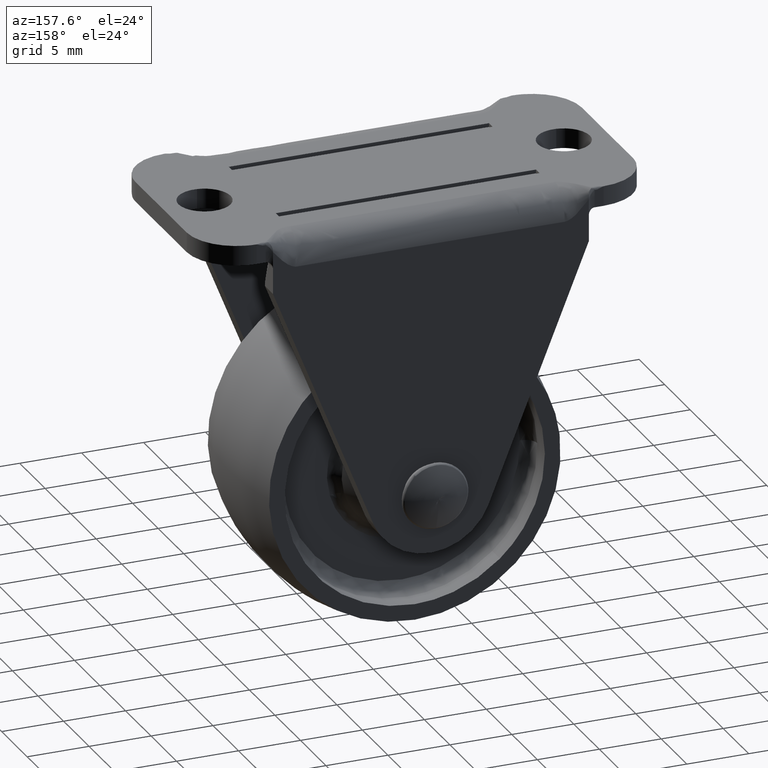
[diagram: clean part render]
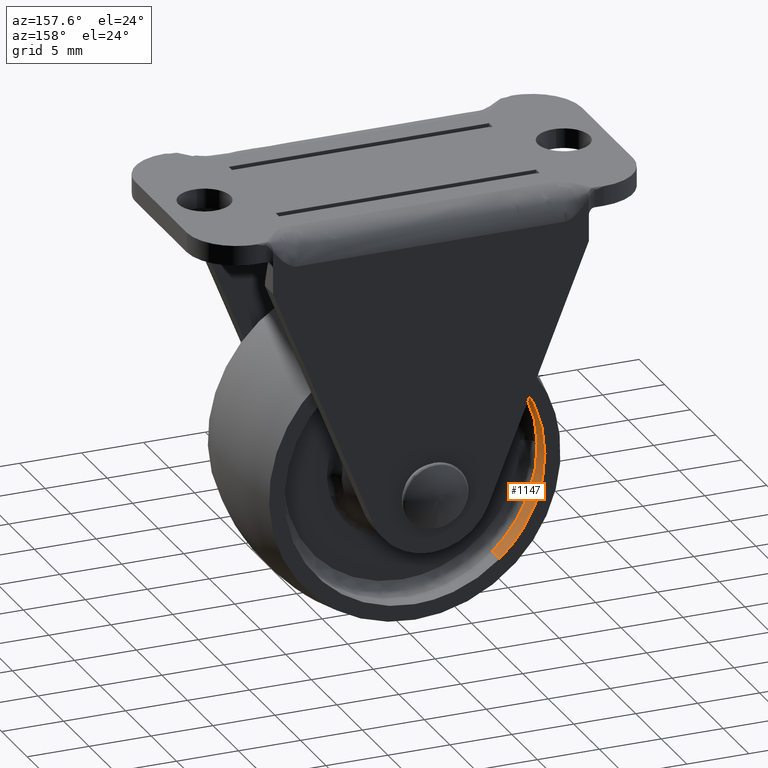
[diagram: same view with one face highlighted and labeled with its STEP entity id]
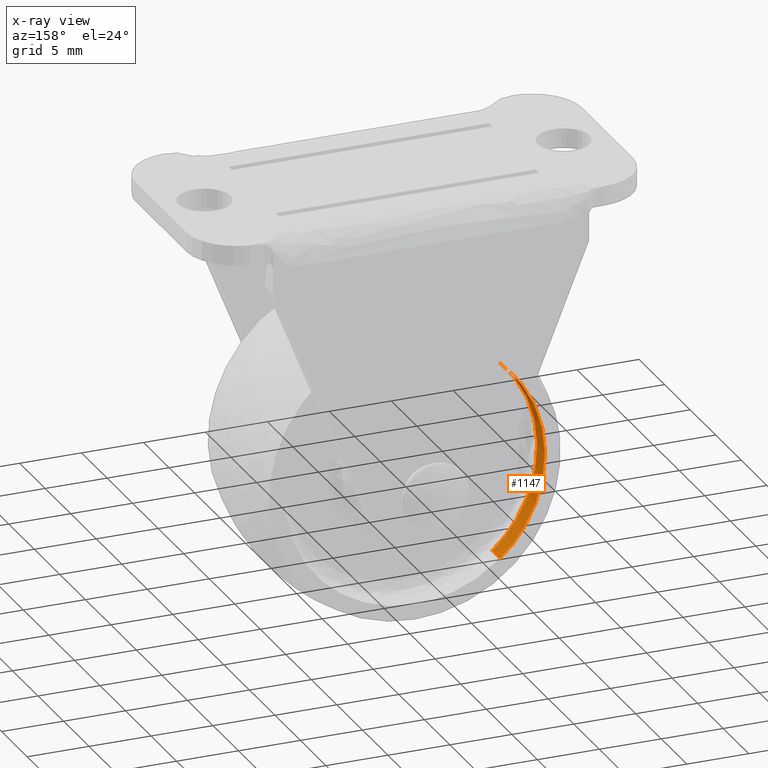
[diagram: x-ray of the same camera — body ghosted, the highlighted face saturated]
A machine part, auxiliary view. The second image highlights one B-rep face of the part: STEP entity #1147.
The next image is the same camera in x-ray: the body ghosted, the highlighted face saturated — about 0% of this face is hidden behind the body in this view.
In plain terms, the highlighted face is a freeform B-spline surface patch.
Its self-contained STEP definition (entity closure, byte-faithful):
#954=CARTESIAN_POINT('',(-6.870565239141527,5.999999999999877,-7.940109148789944));
#955=VERTEX_POINT('',#954);
#971=CARTESIAN_POINT('',(-6.870565253109582,4.499999999999914,-7.940109136703408));
#972=VERTEX_POINT('',#971);
#973=CARTESIAN_POINT('',(-6.870565239141527,5.999999999999877,-7.940109148789944));
#974=CARTESIAN_POINT('',(-6.870565253109582,4.499999999999914,-7.940109136703408));
#975=QUASI_UNIFORM_CURVE('',1,(#973,#974),.UNSPECIFIED.,.F.,.U.);
#976=EDGE_CURVE('',#955,#972,#975,.T.);
#1025=CARTESIAN_POINT('',(-7.093696499334219,4.499999999934300,7.741412660185956));
#1026=VERTEX_POINT('',#1025);
#1040=CARTESIAN_POINT('',(-7.093696514038612,5.999999999999920,7.741412646714783));
#1041=VERTEX_POINT('',#1040);
#1042=CARTESIAN_POINT('',(-7.093696514038612,5.999999999999920,7.741412646714783));
#1043=CARTESIAN_POINT('',(-7.093696499334219,4.499999999934300,7.741412660185956));
#1044=QUASI_UNIFORM_CURVE('',1,(#1042,#1043),.UNSPECIFIED.,.F.,.U.);
#1045=EDGE_CURVE('',#1041,#1026,#1044,.T.);
#1080=CARTESIAN_POINT('',(-7.093697179964432,6.037500000006006,7.741412036506298));
#1081=CARTESIAN_POINT('',(-14.835109216470725,6.037500000006005,0.647714856541866));
#1082=CARTESIAN_POINT('',(-7.741412036506299,6.037500000006006,-7.093697179964432));
#1083=CARTESIAN_POINT('',(-7.330503745987587,6.037500000006006,-7.542124890567344));
#1084=CARTESIAN_POINT('',(-6.870566398528398,6.037500000006006,-7.940108145574117));
#1085=CARTESIAN_POINT('',(-7.093697179964432,4.461562499750310,7.741412036506298));
#1086=CARTESIAN_POINT('',(-14.835109216470725,4.461562499750310,0.647714856541866));
#1087=CARTESIAN_POINT('',(-7.741412036506299,4.461562499750310,-7.093697179964432));
#1088=CARTESIAN_POINT('',(-7.330503745987587,4.461562499750309,-7.542124890567344));
#1089=CARTESIAN_POINT('',(-6.870566398528398,4.461562499750310,-7.940108145574117));
#1097=(BOUNDED_SURFACE()B_SPLINE_SURFACE(2,1,((#1080,#1085),(#1081,#1086),(#1082,#1087),(#1083,#1088),(#1084,#1089)),.UNSPECIFIED.,.F.,.F.,.U.)B_SPLINE_SURFACE_WITH_KNOTS((3,2,3),(2,2),(0.0,17.396969619669989,18.788727189243591),(0.0,1.0),.UNSPECIFIED.)GEOMETRIC_REPRESENTATION_ITEM()RATIONAL_B_SPLINE_SURFACE(((1.0,1.0),(0.707106781186548,0.707106781186548),(1.0,1.0),(0.976568542494924,0.976568542494924),(0.956886118190660,0.956886118190660)))REPRESENTATION_ITEM('')SURFACE());
#1098=CARTESIAN_POINT('',(-7.093696514038612,5.999999999999920,7.741412646714783));
#1099=CARTESIAN_POINT('',(-10.500000000000000,5.999999999999920,4.620111652459503));
#1100=CARTESIAN_POINT('',(-10.500000000000000,5.999999999999920,-8.061993E-016));
#1101=CARTESIAN_POINT('',(-10.500000000000000,5.999999999999920,-4.799564373094359));
#1102=CARTESIAN_POINT('',(-6.870565239141527,5.999999999999877,-7.940109148789944));
#1110=(BOUNDED_CURVE()B_SPLINE_CURVE(2,(#1098,#1099,#1100,#1101,#1102),.UNSPECIFIED.,.F.,.U.)B_SPLINE_CURVE_WITH_KNOTS((3,2,3),(0.618415183112510,0.750000000000000,0.885882142009453),.UNSPECIFIED.)CURVE()GEOMETRIC_REPRESENTATION_ITEM()RATIONAL_B_SPLINE_CURVE((0.853959784043709,0.845838797739378,1.0,0.840804168190338,0.854663301382865))REPRESENTATION_ITEM(''));
#1111=EDGE_CURVE('',#1041,#955,#1110,.T.);
#1112=ORIENTED_EDGE('',*,*,#1111,.F.);
#1113=ORIENTED_EDGE('',*,*,#1045,.T.);
#1114=CARTESIAN_POINT('',(-10.496683987474089,4.499999999756547,0.263866002177145));
#1115=VERTEX_POINT('',#1114);
#1116=CARTESIAN_POINT('',(-7.093696499334219,4.499999999934300,7.741412660185956));
#1117=CARTESIAN_POINT('',(-10.384516397620096,4.499999999862635,4.725932863843866));
#1118=CARTESIAN_POINT('',(-10.496683987474094,4.499999999756547,0.263866002177145));
#1126=(BOUNDED_CURVE()B_SPLINE_CURVE(2,(#1116,#1117,#1118),.UNSPECIFIED.,.F.,.U.)B_SPLINE_CURVE_WITH_KNOTS((3,3),(0.618415182539026,0.745579891769070),.UNSPECIFIED.)CURVE()GEOMETRIC_REPRESENTATION_ITEM()RATIONAL_B_SPLINE_CURVE((0.853959784114496,0.846111591774231,0.989826157679909))REPRESENTATION_ITEM(''));
#1127=EDGE_CURVE('',#1026,#1115,#1126,.T.);
#1128=ORIENTED_EDGE('',*,*,#1127,.T.);
#1129=CARTESIAN_POINT('',(-10.496683987474087,4.499999999756547,0.263866002177145));
#1130=CARTESIAN_POINT('',(-10.500000000000000,4.499999999999915,0.131953837317596));
#1131=CARTESIAN_POINT('',(-10.500000000000000,4.499999999999915,-8.061993E-016));
#1132=CARTESIAN_POINT('',(-10.500000000000002,4.499999999999916,-4.799564361928965));
#1133=CARTESIAN_POINT('',(-6.870565253109582,4.499999999999914,-7.940109136703408));
#1141=(BOUNDED_CURVE()B_SPLINE_CURVE(2,(#1129,#1130,#1131,#1132,#1133),.UNSPECIFIED.,.F.,.U.)B_SPLINE_CURVE_WITH_KNOTS((3,2,3),(0.745579891769071,0.750000000000000,0.885882141743669),.UNSPECIFIED.)CURVE()GEOMETRIC_REPRESENTATION_ITEM()RATIONAL_B_SPLINE_CURVE((0.989826157679911,0.994821521090957,1.0,0.840804168501724,0.854663301328648))REPRESENTATION_ITEM(''));
#1142=EDGE_CURVE('',#1115,#972,#1141,.T.);
#1143=ORIENTED_EDGE('',*,*,#1142,.T.);
#1144=ORIENTED_EDGE('',*,*,#976,.F.);
#1145=EDGE_LOOP('',(#1112,#1113,#1128,#1143,#1144));
#1146=FACE_OUTER_BOUND('',#1145,.T.);
#1147=ADVANCED_FACE('',(#1146),#1097,.F.);